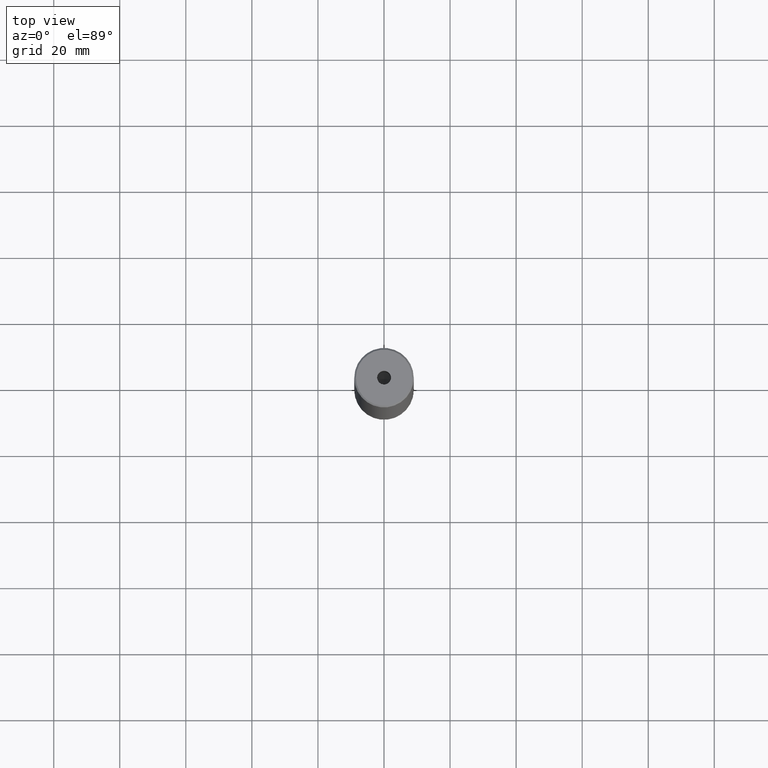
[diagram: clean part render]
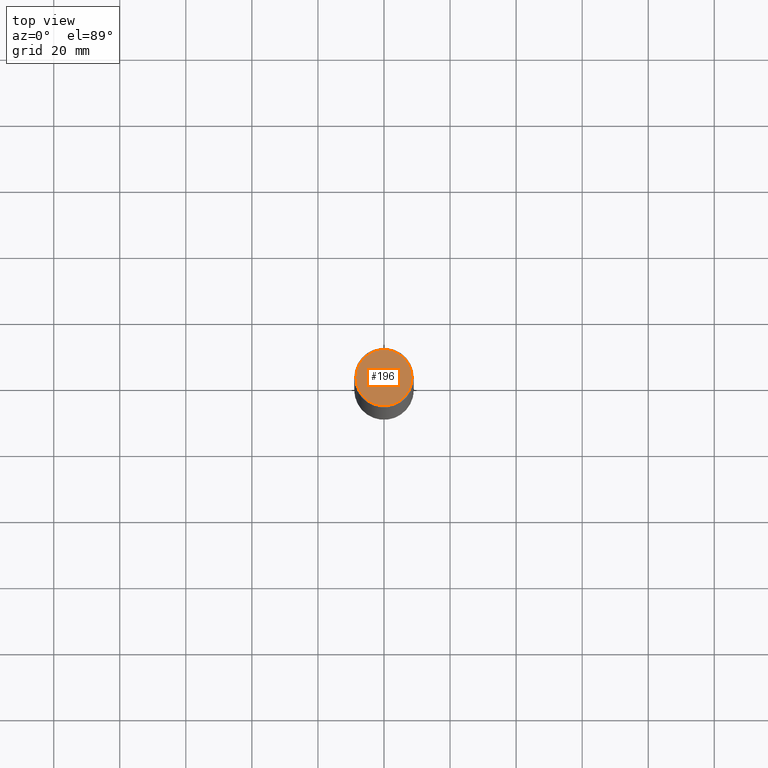
[diagram: same view with one face highlighted and labeled with its STEP entity id]
A machine part, top view. The second image highlights one B-rep face of the part: STEP entity #196.
In plain terms, the highlighted planar face has unit normal (0, -0, 1).
Its self-contained STEP definition (entity closure, byte-faithful):
#20 = VERTEX_POINT ( 'NONE', #487 ) ;
#26 = PLANE ( 'NONE',  #263 ) ;
#40 = DIRECTION ( 'NONE',  ( -0.000000000000000000, -0.000000000000000000, 1.000000000000000000 ) ) ;
#52 = CARTESIAN_POINT ( 'NONE',  ( 0.000000000000000000, 0.000000000000000000, 0.000000000000000000 ) ) ;
#65 = VERTEX_POINT ( 'NONE', #546 ) ;
#108 = ORIENTED_EDGE ( 'NONE', *, *, #264, .T. ) ;
#111 = CARTESIAN_POINT ( 'NONE',  ( 0.000000000000000000, 0.000000000000000000, -1.990051048614449116E-16 ) ) ;
#121 = AXIS2_PLACEMENT_3D ( 'NONE', #256, #388, #162 ) ;
#158 = AXIS2_PLACEMENT_3D ( 'NONE', #111, #246, #569 ) ;
#162 = DIRECTION ( 'NONE',  ( 1.000000000000000000, 0.000000000000000000, 0.000000000000000000 ) ) ;
#185 = ORIENTED_EDGE ( 'NONE', *, *, #341, .F. ) ;
#196 = ADVANCED_FACE ( 'NONE', ( #232, #447 ), #26, .T. ) ;
#200 = CARTESIAN_POINT ( 'NONE',  ( 0.000000000000000000, 0.000000000000000000, 0.000000000000000000 ) ) ;
#232 = FACE_BOUND ( 'NONE', #395, .T. ) ;
#246 = DIRECTION ( 'NONE',  ( -0.000000000000000000, -0.000000000000000000, 1.000000000000000000 ) ) ;
#256 = CARTESIAN_POINT ( 'NONE',  ( 0.000000000000000000, 0.000000000000000000, -1.990051048614449116E-16 ) ) ;
#263 = AXIS2_PLACEMENT_3D ( 'NONE', #490, #586, #575 ) ;
#264 = EDGE_CURVE ( 'NONE', #20, #480, #275, .T. ) ;
#275 = CIRCLE ( 'NONE', #362, 8.499999999999980460 ) ;
#285 = DIRECTION ( 'NONE',  ( 1.000000000000000000, 0.000000000000000000, 0.000000000000000000 ) ) ;
#338 = CARTESIAN_POINT ( 'NONE',  ( 2.099999999999998757, 0.000000000000000000, -1.990051048614449116E-16 ) ) ;
#341 = EDGE_CURVE ( 'NONE', #65, #435, #425, .T. ) ;
#353 = ORIENTED_EDGE ( 'NONE', *, *, #551, .F. ) ;
#359 = CIRCLE ( 'NONE', #121, 2.099999999999998757 ) ;
#362 = AXIS2_PLACEMENT_3D ( 'NONE', #200, #565, #285 ) ;
#368 = EDGE_LOOP ( 'NONE', ( #108, #422 ) ) ;
#388 = DIRECTION ( 'NONE',  ( -0.000000000000000000, -0.000000000000000000, 1.000000000000000000 ) ) ;
#395 = EDGE_LOOP ( 'NONE', ( #353, #185 ) ) ;
#422 = ORIENTED_EDGE ( 'NONE', *, *, #468, .T. ) ;
#425 = CIRCLE ( 'NONE', #158, 2.099999999999998757 ) ;
#435 = VERTEX_POINT ( 'NONE', #338 ) ;
#447 = FACE_OUTER_BOUND ( 'NONE', #368, .T. ) ;
#456 = CIRCLE ( 'NONE', #536, 8.499999999999980460 ) ;
#468 = EDGE_CURVE ( 'NONE', #480, #20, #456, .T. ) ;
#480 = VERTEX_POINT ( 'NONE', #574 ) ;
#487 = CARTESIAN_POINT ( 'NONE',  ( -8.499999999999980460, 0.000000000000000000, 0.000000000000000000 ) ) ;
#490 = CARTESIAN_POINT ( 'NONE',  ( 0.000000000000000000, 0.000000000000000000, 0.000000000000000000 ) ) ;
#536 = AXIS2_PLACEMENT_3D ( 'NONE', #52, #40, #537 ) ;
#537 = DIRECTION ( 'NONE',  ( 1.000000000000000000, 0.000000000000000000, 0.000000000000000000 ) ) ;
#546 = CARTESIAN_POINT ( 'NONE',  ( -2.099999999999998757, 2.571758278209440478E-16, -1.990051048614449116E-16 ) ) ;
#551 = EDGE_CURVE ( 'NONE', #435, #65, #359, .T. ) ;
#565 = DIRECTION ( 'NONE',  ( -0.000000000000000000, -0.000000000000000000, 1.000000000000000000 ) ) ;
#569 = DIRECTION ( 'NONE',  ( 1.000000000000000000, 0.000000000000000000, 0.000000000000000000 ) ) ;
#574 = CARTESIAN_POINT ( 'NONE',  ( 8.499999999999980460, 1.071565949253932744E-15, 0.000000000000000000 ) ) ;
#575 = DIRECTION ( 'NONE',  ( 1.000000000000000000, 0.000000000000000000, 0.000000000000000000 ) ) ;
#586 = DIRECTION ( 'NONE',  ( 0.000000000000000000, -0.000000000000000000, 1.000000000000000000 ) ) ;